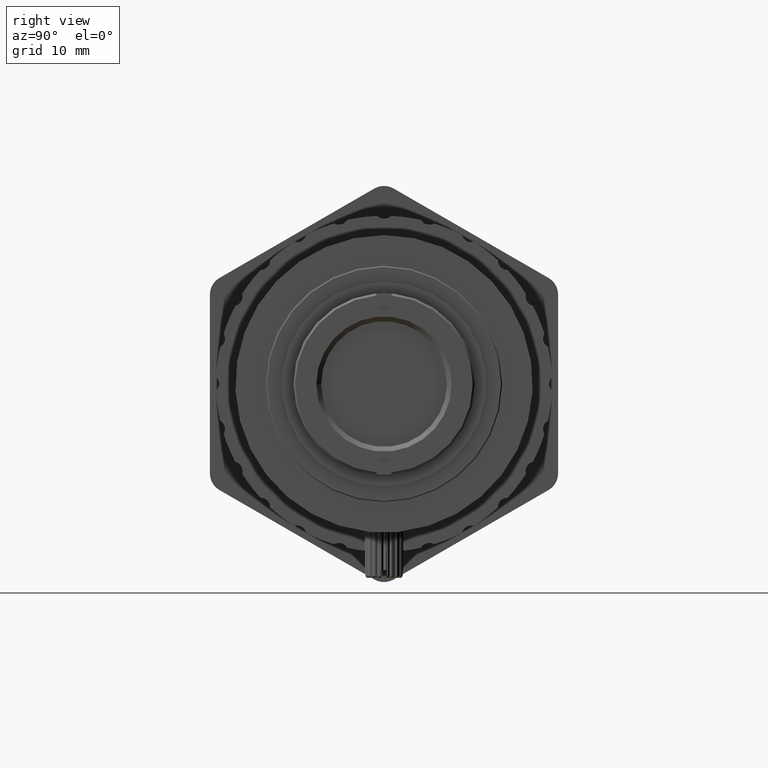
[diagram: clean part render]
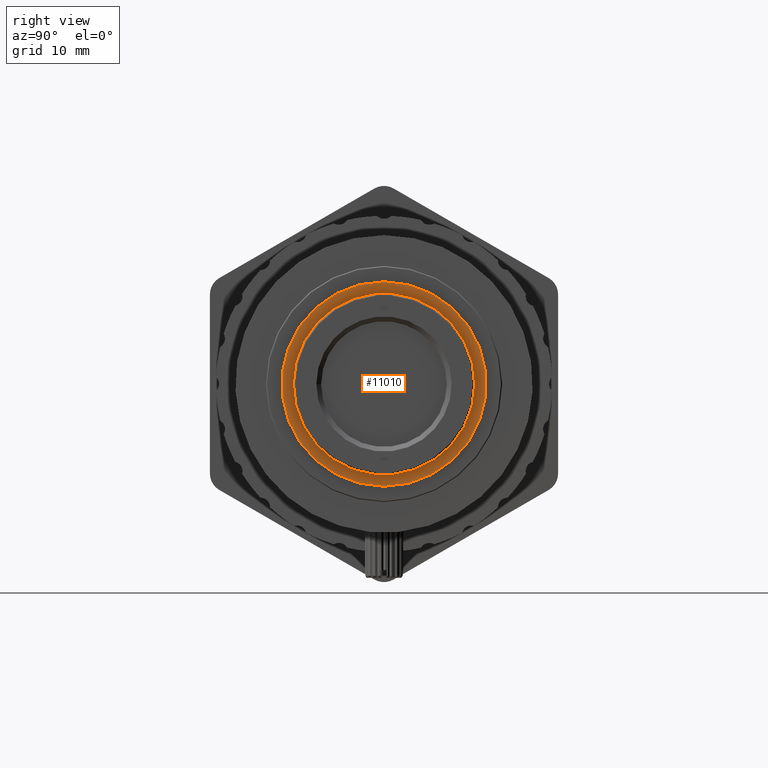
[diagram: same view with one face highlighted and labeled with its STEP entity id]
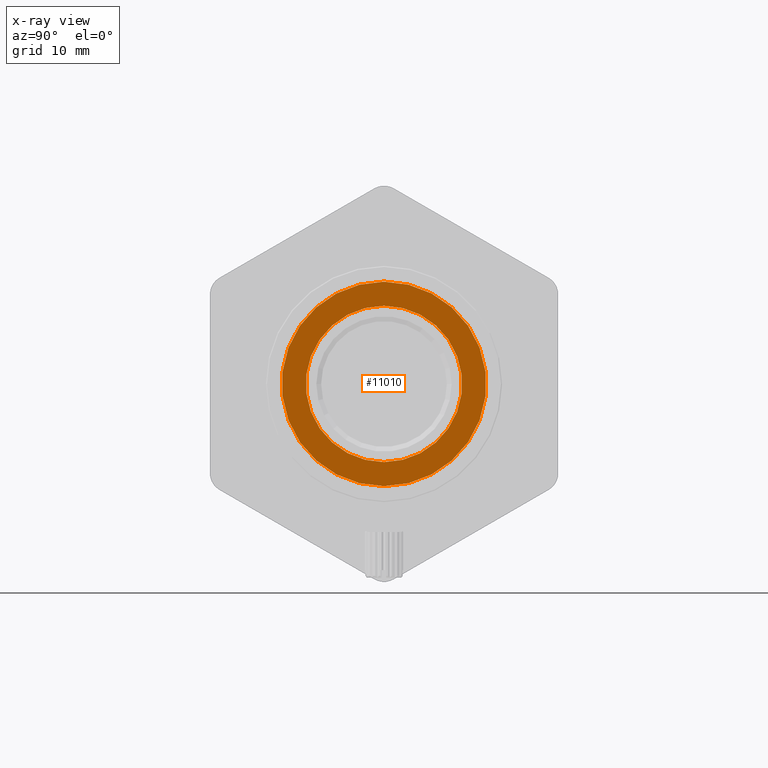
[diagram: x-ray of the same camera — body ghosted, the highlighted face saturated]
A machine part, right view. The second image highlights one B-rep face of the part: STEP entity #11010.
The next image is the same camera in x-ray: the body ghosted, the highlighted face saturated — about 0% of this face is hidden behind the body in this view.
In plain terms, the highlighted planar face has unit normal (1, 0, 0).
Its self-contained STEP definition (entity closure, byte-faithful):
#467 = VERTEX_POINT ( 'NONE', #5183 ) ;
#474 = DIRECTION ( 'NONE',  ( -1.000000000000000000, -0.000000000000000000, -0.000000000000000000 ) ) ;
#570 = EDGE_LOOP ( 'NONE', ( #13375 ) ) ;
#1252 = DIRECTION ( 'NONE',  ( 0.000000000000000000, 0.000000000000000000, 1.000000000000000000 ) ) ;
#1513 = CARTESIAN_POINT ( 'NONE',  ( 19.79712639982755817, -0.6558685446016454534, -1.110223024625156540E-13 ) ) ;
#1680 = FACE_BOUND ( 'NONE', #8583, .T. ) ;
#1905 = AXIS2_PLACEMENT_3D ( 'NONE', #1513, #474, #4892 ) ;
#2371 = CARTESIAN_POINT ( 'NONE',  ( 19.79712639982755817, -0.6558685446016454534, -1.110223024625156540E-13 ) ) ;
#2722 = DIRECTION ( 'NONE',  ( 0.000000000000000000, 0.000000000000000000, -1.000000000000000000 ) ) ;
#2960 = EDGE_CURVE ( 'NONE', #13648, #13648, #3280, .T. ) ;
#3280 = CIRCLE ( 'NONE', #5677, 10.65595144911490877 ) ;
#4832 = CARTESIAN_POINT ( 'NONE',  ( 19.79712639982755817, 10531.32853251661254, -1.110223024625156540E-13 ) ) ;
#4892 = DIRECTION ( 'NONE',  ( 0.000000000000000000, 0.000000000000000000, 1.000000000000000000 ) ) ;
#5183 = CARTESIAN_POINT ( 'NONE',  ( 19.79712639982755817, -0.6558685446016454534, 8.151268203768214704 ) ) ;
#5677 = AXIS2_PLACEMENT_3D ( 'NONE', #2371, #11512, #1252 ) ;
#6101 = DIRECTION ( 'NONE',  ( 1.000000000000000000, 0.000000000000000000, 0.000000000000000000 ) ) ;
#6805 = ORIENTED_EDGE ( 'NONE', *, *, #11324, .T. ) ;
#8416 = FACE_OUTER_BOUND ( 'NONE', #570, .T. ) ;
#8583 = EDGE_LOOP ( 'NONE', ( #6805 ) ) ;
#10506 = CARTESIAN_POINT ( 'NONE',  ( 19.79712639982755817, -0.6558685446016454534, 10.65595144911479863 ) ) ;
#11010 = ADVANCED_FACE ( 'NONE', ( #8416, #1680 ), #12998, .T. ) ;
#11324 = EDGE_CURVE ( 'NONE', #467, #467, #11605, .T. ) ;
#11512 = DIRECTION ( 'NONE',  ( -1.000000000000000000, -0.000000000000000000, -0.000000000000000000 ) ) ;
#11605 = CIRCLE ( 'NONE', #1905, 8.151268203768324838 ) ;
#12630 = AXIS2_PLACEMENT_3D ( 'NONE', #4832, #6101, #2722 ) ;
#12998 = PLANE ( 'NONE',  #12630 ) ;
#13375 = ORIENTED_EDGE ( 'NONE', *, *, #2960, .F. ) ;
#13648 = VERTEX_POINT ( 'NONE', #10506 ) ;